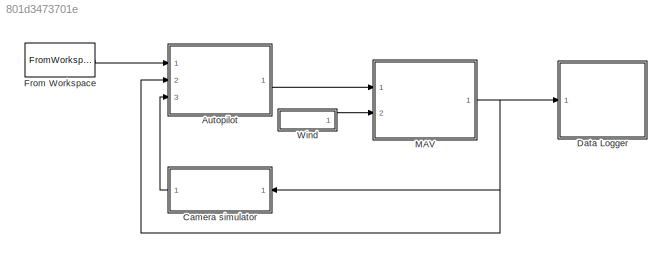
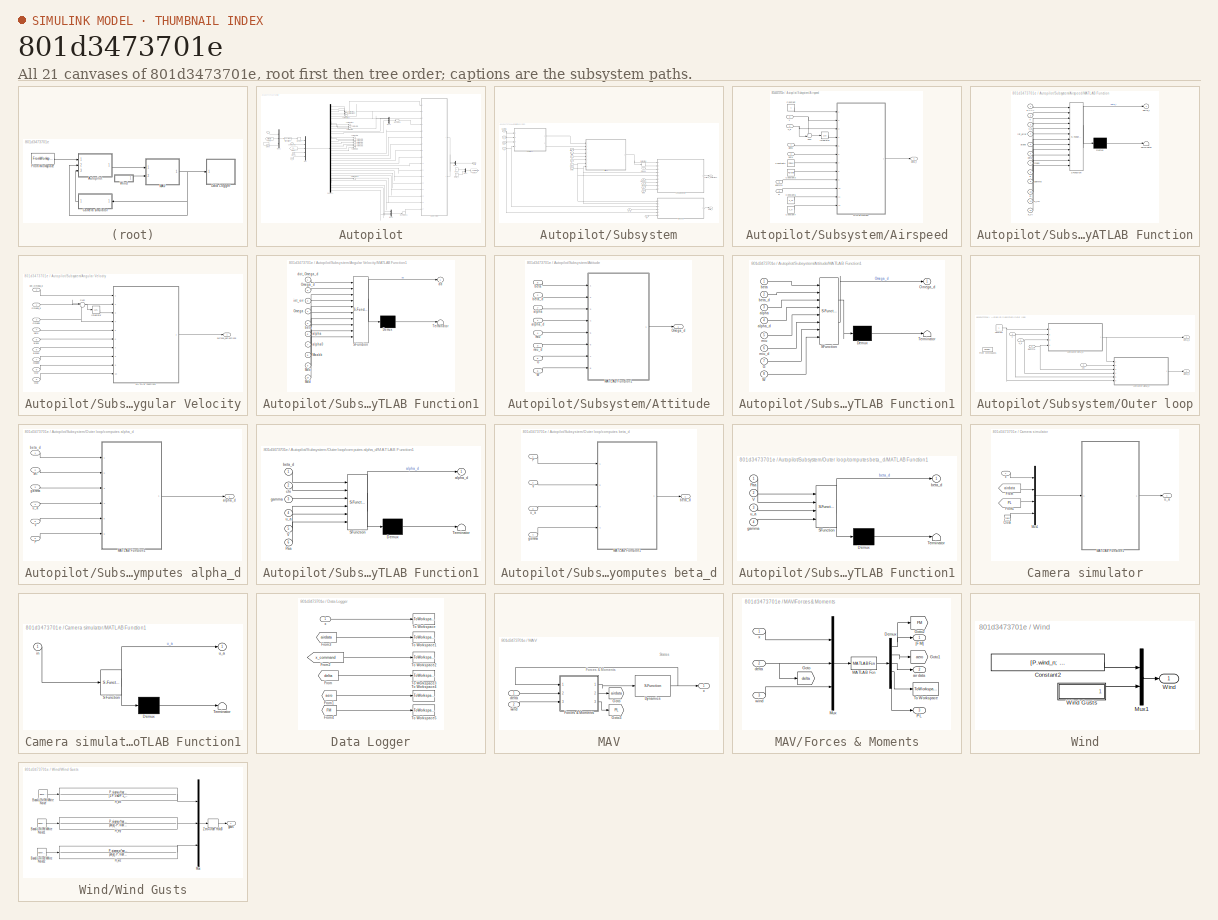
[diagram: thumbnail index - all 21 canvases of the model, root first then tree order]
MODEL slx_801d3473701e
KIND model
CONFIG AbsTol = 1e-3
CONFIG EnableMultiTasking = on
CONFIG FixedStep = P.Ts
CONFIG MaxStep = auto
CONFIG MinStep = auto
CONFIG RelTol = 1e-6
CONFIG SampleTimeConstraint = Unconstrained
CONFIG SolverName = ode4
CONFIG StartTime = 0.0
CONFIG StopTime = T
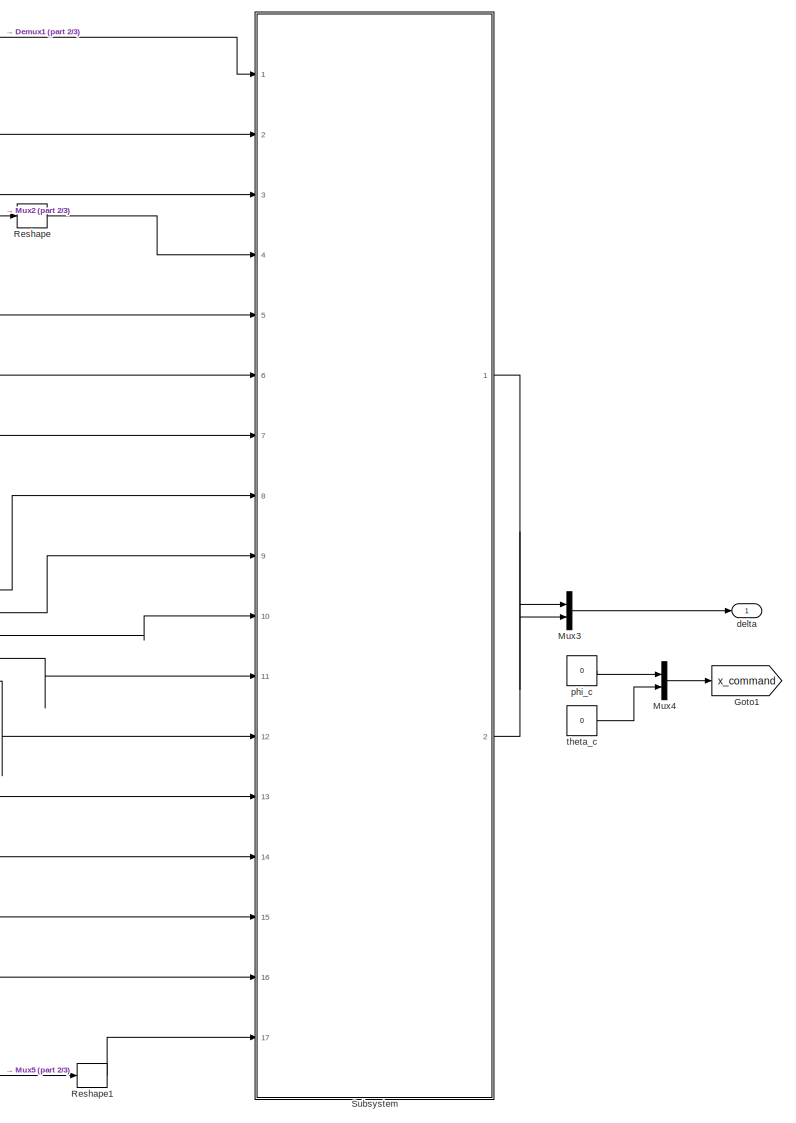
[diagram: Autopilot - part 1/3, right side, full height]
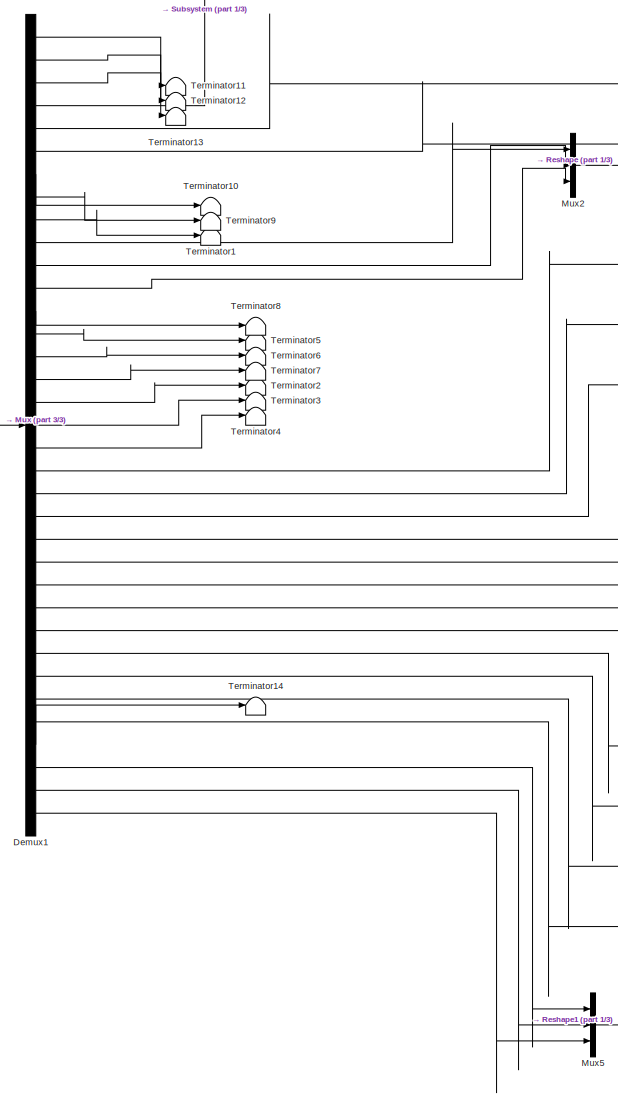
[diagram: Autopilot - part 2/3, center side, full height]
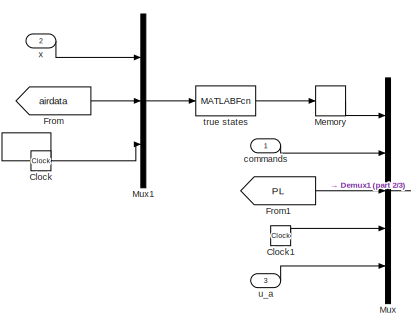
[diagram: Autopilot - part 3/3, middle left region]
BLOCK [SubSystem] Autopilot
  Ports = [3, 1]
  RequestExecContextInheritance = off
BLOCK [Clock] Autopilot/Clock
BLOCK [Clock] Autopilot/Clock1
BLOCK [Demux] Autopilot/Demux1
  Outputs = 19+1+11+1+3
  Ports = [1, 35]
BLOCK [From] Autopilot/From
  GotoTag = airdata
  TagVisibility = global
BLOCK [From] Autopilot/From1
  GotoTag = PL
  TagVisibility = global
BLOCK [Goto] Autopilot/Goto1
  GotoTag = x_command
  TagVisibility = global
BLOCK [Memory] Autopilot/Memory
BLOCK [Mux] Autopilot/Mux
  DisplayOption = bar
  Inputs = 5
  Ports = [5, 1]
BLOCK [Mux] Autopilot/Mux1
  DisplayOption = bar
  Inputs = 3
  Ports = [3, 1]
BLOCK [Mux] Autopilot/Mux2
  DisplayOption = bar
  Inputs = 3
  Ports = [3, 1]
BLOCK [Mux] Autopilot/Mux3
  DisplayOption = bar
  Inputs = 2
  Ports = [2, 1]
BLOCK [Mux] Autopilot/Mux4
  DisplayOption = bar
  Inputs = 2
  Ports = [2, 1]
BLOCK [Mux] Autopilot/Mux5
  DisplayOption = bar
  Inputs = 3
  Ports = [3, 1]
BLOCK [Reshape] Autopilot/Reshape
  OutputDimensionality = Customize
  OutputDimensions = [3,1]
  Ports = [1, 1]
BLOCK [Reshape] Autopilot/Reshape1
  OutputDimensionality = Customize
  OutputDimensions = [3,1]
  Ports = [1, 1]
BLOCK [SubSystem] Autopilot/Subsystem
  Ports = [17, 2]
  RequestExecContextInheritance = off
BLOCK [SubSystem] Autopilot/Subsystem/Airspeed
  Ports = [6, 1]
  RequestExecContextInheritance = off
BLOCK [Constant] Autopilot/Subsystem/Airspeed/Constant
BLOCK [Constant] Autopilot/Subsystem/Airspeed/Constant2
  Value = P.mass
BLOCK [Constant] Autopilot/Subsystem/Airspeed/Constant3
  Value = P.gravity
BLOCK [Constant] Autopilot/Subsystem/Airspeed/Constant6
  Value = k_VP
BLOCK [Constant] Autopilot/Subsystem/Airspeed/Constant7
  Value = k_VI
BLOCK [Inport] Autopilot/Subsystem/Airspeed/D
  Port = 6
BLOCK [Integrator] Autopilot/Subsystem/Airspeed/Integrator
  Ports = [1, 1]
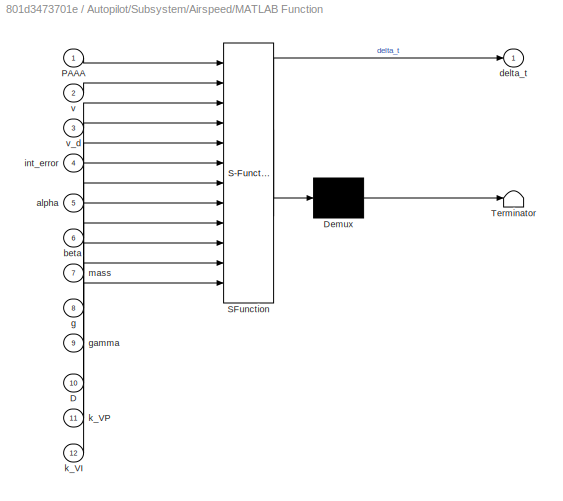
BLOCK [SubSystem] Autopilot/Subsystem/Airspeed/MATLAB Function
  ErrorFcn = Stateflow.Translate.translate
  PermitHierarchicalResolution = ExplicitOnly
  Ports = [12, 1]
  RequestExecContextInheritance = off
  SFBlockType = MATLAB Function
  TreatAsAtomicUnit = on
BLOCK [Demux] Autopilot/Subsystem/Airspeed/MATLAB Function/ Demux 
  Outputs = 1
  Ports = [1, 1]
BLOCK [S-Function] Autopilot/Subsystem/Airspeed/MATLAB Function/ SFunction 
  EnableBusSupport = on
  FunctionName = sf_sfun
  PortCounts = [12 2]
  Ports = [12, 2]
  SFcnIsStateOwnerBlock = off
  SFunctionDeploymentMode = off
  Tag = Stateflow S-Function 6
BLOCK [Terminator] Autopilot/Subsystem/Airspeed/MATLAB Function/ Terminator 
BLOCK [Inport] Autopilot/Subsystem/Airspeed/MATLAB Function/D
  Port = 10
BLOCK [Inport] Autopilot/Subsystem/Airspeed/MATLAB Function/PAAA
BLOCK [Inport] Autopilot/Subsystem/Airspeed/MATLAB Function/alpha
  Port = 5
BLOCK [Inport] Autopilot/Subsystem/Airspeed/MATLAB Function/beta
  Port = 6
BLOCK [Outport] Autopilot/Subsystem/Airspeed/MATLAB Function/delta_t
  VectorParamsAs1DForOutWhenUnconnected = off
BLOCK [Inport] Autopilot/Subsystem/Airspeed/MATLAB Function/g
  Port = 8
BLOCK [Inport] Autopilot/Subsystem/Airspeed/MATLAB Function/gamma
  Port = 9
BLOCK [Inport] Autopilot/Subsystem/Airspeed/MATLAB Function/int_error
  Port = 4
BLOCK [Inport] Autopilot/Subsystem/Airspeed/MATLAB Function/k_VI
  Port = 12
BLOCK [Inport] Autopilot/Subsystem/Airspeed/MATLAB Function/k_VP
  Port = 11
BLOCK [Inport] Autopilot/Subsystem/Airspeed/MATLAB Function/mass
  Port = 7
BLOCK [Inport] Autopilot/Subsystem/Airspeed/MATLAB Function/v
  Port = 2
BLOCK [Inport] Autopilot/Subsystem/Airspeed/MATLAB Function/v_d
  Port = 3
BLOCK [Sum] Autopilot/Subsystem/Airspeed/Sum
  Inputs = +-|
  Ports = [2, 1]
BLOCK [Inport] Autopilot/Subsystem/Airspeed/alpha
BLOCK [Inport] Autopilot/Subsystem/Airspeed/beta
  Port = 2
BLOCK [Outport] Autopilot/Subsystem/Airspeed/delta_t 
  VectorParamsAs1DForOutWhenUnconnected = off
BLOCK [Inport] Autopilot/Subsystem/Airspeed/gamma
  Port = 5
BLOCK [Inport] Autopilot/Subsystem/Airspeed/v 
  Port = 3
BLOCK [Inport] Autopilot/Subsystem/Airspeed/v_d
  Port = 4
BLOCK [SubSystem] Autopilot/Subsystem/Angular Velocity
  Ports = [9, 1]
  RequestExecContextInheritance = off
BLOCK [Integrator] Autopilot/Subsystem/Angular Velocity/Integrator
  Ports = [1, 1]
BLOCK [SubSystem] Autopilot/Subsystem/Angular Velocity/MATLAB Function1
  ErrorFcn = Stateflow.Translate.translate
  PermitHierarchicalResolution = ExplicitOnly
  Ports = [10, 1]
  RequestExecContextInheritance = off
  SFBlockType = MATLAB Function
  TreatAsAtomicUnit = on
BLOCK [Demux] Autopilot/Subsystem/Angular Velocity/MATLAB Function1/ Demux 
  Outputs = 1
  Ports = [1, 1]
BLOCK [S-Function] Autopilot/Subsystem/Angular Velocity/MATLAB Function1/ SFunction 
  EnableBusSupport = on
  FunctionName = sf_sfun
  PortCounts = [10 2]
  Ports = [10, 2]
  SFcnIsStateOwnerBlock = off
  SFunctionDeploymentMode = off
  Tag = Stateflow S-Function 7
BLOCK [Terminator] Autopilot/Subsystem/Angular Velocity/MATLAB Function1/ Terminator 
BLOCK [Inport] Autopilot/Subsystem/Angular Velocity/MATLAB Function1/Maabb
  Port = 8
BLOCK [Inport] Autopilot/Subsystem/Angular Velocity/MATLAB Function1/Mdd
  Port = 10
BLOCK [Inport] Autopilot/Subsystem/Angular Velocity/MATLAB Function1/Moo
  Port = 9
BLOCK [Inport] Autopilot/Subsystem/Angular Velocity/MATLAB Function1/Omega
  Port = 4
BLOCK [Inport] Autopilot/Subsystem/Angular Velocity/MATLAB Function1/Omega_d
  Port = 2
BLOCK [Inport] Autopilot/Subsystem/Angular Velocity/MATLAB Function1/alpha
  Port = 6
BLOCK [Inport] Autopilot/Subsystem/Angular Velocity/MATLAB Function1/alpha0
  Port = 7
BLOCK [Inport] Autopilot/Subsystem/Angular Velocity/MATLAB Function1/beta
  Port = 5
BLOCK [Outport] Autopilot/Subsystem/Angular Velocity/MATLAB Function1/dd
  VectorParamsAs1DForOutWhenUnconnected = off
BLOCK [Inport] Autopilot/Subsystem/Angular Velocity/MATLAB Function1/dot_Omega_d
BLOCK [Inport] Autopilot/Subsystem/Angular Velocity/MATLAB Function1/int_err
  Port = 3
BLOCK [Inport] Autopilot/Subsystem/Angular Velocity/Maabb
  Port = 7
BLOCK [Inport] Autopilot/Subsystem/Angular Velocity/Mdd
  Port = 9
BLOCK [Inport] Autopilot/Subsystem/Angular Velocity/Moo
  Port = 8
BLOCK [Inport] Autopilot/Subsystem/Angular Velocity/Omega
  Port = 3
BLOCK [Inport] Autopilot/Subsystem/Angular Velocity/Omega_d
BLOCK [Sum] Autopilot/Subsystem/Angular Velocity/Sum
  Inputs = |-+
  Ports = [2, 1]
BLOCK [Inport] Autopilot/Subsystem/Angular Velocity/alpha
  Port = 5
BLOCK [Inport] Autopilot/Subsystem/Angular Velocity/alpha0
  Port = 6
BLOCK [Inport] Autopilot/Subsystem/Angular Velocity/beta
  Port = 4
BLOCK [Inport] Autopilot/Subsystem/Angular Velocity/dot_Omega_d
  Port = 2
BLOCK [Outport] Autopilot/Subsystem/Angular Velocity/surface_deflections
  VectorParamsAs1DForOutWhenUnconnected = off
BLOCK [SubSystem] Autopilot/Subsystem/Attitude
  Ports = [8, 1]
  RequestExecContextInheritance = off
BLOCK [Inport] Autopilot/Subsystem/Attitude/G
  Port = 5
BLOCK [SubSystem] Autopilot/Subsystem/Attitude/MATLAB Function1
  ErrorFcn = Stateflow.Translate.translate
  PermitHierarchicalResolution = ExplicitOnly
  Ports = [8, 1]
  RequestExecContextInheritance = off
  SFBlockType = MATLAB Function
  TreatAsAtomicUnit = on
BLOCK [Demux] Autopilot/Subsystem/Attitude/MATLAB Function1/ Demux 
  Outputs = 1
  Ports = [1, 1]
BLOCK [S-Function] Autopilot/Subsystem/Attitude/MATLAB Function1/ SFunction 
  EnableBusSupport = on
  FunctionName = sf_sfun
  PortCounts = [8 2]
  Ports = [8, 2]
  SFcnIsStateOwnerBlock = off
  SFunctionDeploymentMode = off
  Tag = Stateflow S-Function 8
BLOCK [Terminator] Autopilot/Subsystem/Attitude/MATLAB Function1/ Terminator 
BLOCK [Inport] Autopilot/Subsystem/Attitude/MATLAB Function1/G
  Port = 7
BLOCK [Outport] Autopilot/Subsystem/Attitude/MATLAB Function1/Omega_d
  VectorParamsAs1DForOutWhenUnconnected = off
BLOCK [Inport] Autopilot/Subsystem/Attitude/MATLAB Function1/W
  Port = 8
BLOCK [Inport] Autopilot/Subsystem/Attitude/MATLAB Function1/alpha
  Port = 3
BLOCK [Inport] Autopilot/Subsystem/Attitude/MATLAB Function1/alpha_d
  Port = 4
BLOCK [Inport] Autopilot/Subsystem/Attitude/MATLAB Function1/beta
BLOCK [Inport] Autopilot/Subsystem/Attitude/MATLAB Function1/beta_d
  Port = 2
BLOCK [Inport] Autopilot/Subsystem/Attitude/MATLAB Function1/miu
  Port = 5
BLOCK [Inport] Autopilot/Subsystem/Attitude/MATLAB Function1/miu_d
  Port = 6
BLOCK [Outport] Autopilot/Subsystem/Attitude/Omega_d
  VectorParamsAs1DForOutWhenUnconnected = off
BLOCK [Inport] Autopilot/Subsystem/Attitude/W
  Port = 6
BLOCK [Inport] Autopilot/Subsystem/Attitude/alpha
  Port = 7
BLOCK [Inport] Autopilot/Subsystem/Attitude/alpha_d
BLOCK [Inport] Autopilot/Subsystem/Attitude/beta
  Port = 8
BLOCK [Inport] Autopilot/Subsystem/Attitude/beta_d
  Port = 2
BLOCK [Inport] Autopilot/Subsystem/Attitude/miu
  Port = 4
BLOCK [Inport] Autopilot/Subsystem/Attitude/miu_d
  Port = 3
BLOCK [Inport] Autopilot/Subsystem/D
  Port = 16
BLOCK [Derivative] Autopilot/Subsystem/Derivative
BLOCK [Inport] Autopilot/Subsystem/G
  Port = 9
BLOCK [Inport] Autopilot/Subsystem/Maabb
  Port = 13
BLOCK [Inport] Autopilot/Subsystem/Mdd
  Port = 15
BLOCK [Inport] Autopilot/Subsystem/Moo
  Port = 14
BLOCK [Inport] Autopilot/Subsystem/Omega 
  Port = 4
BLOCK [SubSystem] Autopilot/Subsystem/Outer loop
  Ports = [4, 2]
  RequestExecContextInheritance = off
BLOCK [Constant] Autopilot/Subsystem/Outer loop/Constant
BLOCK [FromWorkspace] Autopilot/Subsystem/Outer loop/From Workspace1
  Commented = on
  VariableName = P
BLOCK [Inport] Autopilot/Subsystem/Outer loop/V
  Port = 4
BLOCK [Outport] Autopilot/Subsystem/Outer loop/alpha_d
BLOCK [Outport] Autopilot/Subsystem/Outer loop/beta_d
  Port = 2
BLOCK [Inport] Autopilot/Subsystem/Outer loop/chi
  Port = 3
BLOCK [SubSystem] Autopilot/Subsystem/Outer loop/computes alpha_d
  Ports = [6, 1]
  RequestExecContextInheritance = off
BLOCK [SubSystem] Autopilot/Subsystem/Outer loop/computes alpha_d/MATLAB Function1
  ErrorFcn = Stateflow.Translate.translate
  PermitHierarchicalResolution = ExplicitOnly
  Ports = [6, 1]
  RequestExecContextInheritance = off
  SFBlockType = MATLAB Function
  TreatAsAtomicUnit = on
BLOCK [Demux] Autopilot/Subsystem/Outer loop/computes alpha_d/MATLAB Function1/ Demux 
  Outputs = 1
  Ports = [1, 1]
BLOCK [S-Function] Autopilot/Subsystem/Outer loop/computes alpha_d/MATLAB Function1/ SFunction 
  EnableBusSupport = on
  FunctionName = sf_sfun
  PortCounts = [6 2]
  Ports = [6, 2]
  SFcnIsStateOwnerBlock = off
  SFunctionDeploymentMode = off
  Tag = Stateflow S-Function 9
BLOCK [Terminator] Autopilot/Subsystem/Outer loop/computes alpha_d/MATLAB Function1/ Terminator 
BLOCK [Inport] Autopilot/Subsystem/Outer loop/computes alpha_d/MATLAB Function1/Paa
  Port = 6
BLOCK [Inport] Autopilot/Subsystem/Outer loop/computes alpha_d/MATLAB Function1/V
  Port = 5
BLOCK [Outport] Autopilot/Subsystem/Outer loop/computes alpha_d/MATLAB Function1/alpha_d
  VectorParamsAs1DForOutWhenUnconnected = off
BLOCK [Inport] Autopilot/Subsystem/Outer loop/computes alpha_d/MATLAB Function1/beta_d
BLOCK [Inport] Autopilot/Subsystem/Outer loop/computes alpha_d/MATLAB Function1/chi
  Port = 2
BLOCK [Inport] Autopilot/Subsystem/Outer loop/computes alpha_d/MATLAB Function1/gamma
  Port = 3
BLOCK [Inport] Autopilot/Subsystem/Outer loop/computes alpha_d/MATLAB Function1/u_a
  Port = 4
BLOCK [Inport] Autopilot/Subsystem/Outer loop/computes alpha_d/P
  Port = 6
BLOCK [Inport] Autopilot/Subsystem/Outer loop/computes alpha_d/V
  Port = 5
BLOCK [Outport] Autopilot/Subsystem/Outer loop/computes alpha_d/alpha_d
  VectorParamsAs1DForOutWhenUnconnected = off
BLOCK [Inport] Autopilot/Subsystem/Outer loop/computes alpha_d/beta_d
BLOCK [Inport] Autopilot/Subsystem/Outer loop/computes alpha_d/chi
  Port = 2
BLOCK [Inport] Autopilot/Subsystem/Outer loop/computes alpha_d/gamma
  Port = 3
BLOCK [Inport] Autopilot/Subsystem/Outer loop/computes alpha_d/u_a
  Port = 4
BLOCK [SubSystem] Autopilot/Subsystem/Outer loop/computes beta_d
  Ports = [4, 1]
  RequestExecContextInheritance = off
BLOCK [SubSystem] Autopilot/Subsystem/Outer loop/computes beta_d/MATLAB Function1
  ErrorFcn = Stateflow.Translate.translate
  PermitHierarchicalResolution = ExplicitOnly
  Ports = [4, 1]
  RequestExecContextInheritance = off
  SFBlockType = MATLAB Function
  TreatAsAtomicUnit = on
BLOCK [Demux] Autopilot/Subsystem/Outer loop/computes beta_d/MATLAB Function1/ Demux 
  Outputs = 1
  Ports = [1, 1]
BLOCK [S-Function] Autopilot/Subsystem/Outer loop/computes beta_d/MATLAB Function1/ SFunction 
  EnableBusSupport = on
  FunctionName = sf_sfun
  PortCounts = [4 2]
  Ports = [4, 2]
  SFcnIsStateOwnerBlock = off
  SFunctionDeploymentMode = off
  Tag = Stateflow S-Function 10
BLOCK [Terminator] Autopilot/Subsystem/Outer loop/computes beta_d/MATLAB Function1/ Terminator 
BLOCK [Inport] Autopilot/Subsystem/Outer loop/computes beta_d/MATLAB Function1/Paa
BLOCK [Inport] Autopilot/Subsystem/Outer loop/computes beta_d/MATLAB Function1/V
  Port = 2
BLOCK [Outport] Autopilot/Subsystem/Outer loop/computes beta_d/MATLAB Function1/beta_d
  VectorParamsAs1DForOutWhenUnconnected = off
BLOCK [Inport] Autopilot/Subsystem/Outer loop/computes beta_d/MATLAB Function1/gamma
  Port = 4
BLOCK [Inport] Autopilot/Subsystem/Outer loop/computes beta_d/MATLAB Function1/u_a
  Port = 3
BLOCK [Inport] Autopilot/Subsystem/Outer loop/computes beta_d/P
BLOCK [Inport] Autopilot/Subsystem/Outer loop/computes beta_d/V
  Port = 2
BLOCK [Outport] Autopilot/Subsystem/Outer loop/computes beta_d/beta_d
  VectorParamsAs1DForOutWhenUnconnected = off
BLOCK [Inport] Autopilot/Subsystem/Outer loop/computes beta_d/gamma
  Port = 4
BLOCK [Inport] Autopilot/Subsystem/Outer loop/computes beta_d/u_a
  Port = 3
BLOCK [Inport] Autopilot/Subsystem/Outer loop/gamma
BLOCK [Inport] Autopilot/Subsystem/Outer loop/u_a
  Port = 2
BLOCK [Inport] Autopilot/Subsystem/V
BLOCK [Inport] Autopilot/Subsystem/W
  Port = 10
BLOCK [Inport] Autopilot/Subsystem/alpha
  Port = 2
BLOCK [Inport] Autopilot/Subsystem/alpha0 1
  Port = 12
BLOCK [Inport] Autopilot/Subsystem/beta
  Port = 3
BLOCK [Inport] Autopilot/Subsystem/chi
  Port = 11
BLOCK [Outport] Autopilot/Subsystem/delta_t 
  Port = 2
  VectorParamsAs1DForOutWhenUnconnected = off
BLOCK [Inport] Autopilot/Subsystem/gamma
  Port = 8
BLOCK [Inport] Autopilot/Subsystem/miu
  Port = 6
BLOCK [Inport] Autopilot/Subsystem/miu_d
  Port = 7
BLOCK [Outport] Autopilot/Subsystem/surface_deflections
  VectorParamsAs1DForOutWhenUnconnected = off
BLOCK [Inport] Autopilot/Subsystem/u_a
  Port = 17
BLOCK [Inport] Autopilot/Subsystem/v_d
  Port = 5
BLOCK [Terminator] Autopilot/Terminator1
BLOCK [Terminator] Autopilot/Terminator10
  NameLocation = left
BLOCK [Terminator] Autopilot/Terminator11
BLOCK [Terminator] Autopilot/Terminator12
BLOCK [Terminator] Autopilot/Terminator13
BLOCK [Terminator] Autopilot/Terminator14
BLOCK [Terminator] Autopilot/Terminator2
BLOCK [Terminator] Autopilot/Terminator3
BLOCK [Terminator] Autopilot/Terminator4
BLOCK [Terminator] Autopilot/Terminator5
BLOCK [Terminator] Autopilot/Terminator6
BLOCK [Terminator] Autopilot/Terminator7
BLOCK [Terminator] Autopilot/Terminator8
BLOCK [Terminator] Autopilot/Terminator9
BLOCK [Inport] Autopilot/commands
BLOCK [Outport] Autopilot/delta
  VectorParamsAs1DForOutWhenUnconnected = off
BLOCK [Constant] Autopilot/phi_c
  Value = 0
BLOCK [Constant] Autopilot/theta_c
  Value = 0
BLOCK [MATLABFcn] Autopilot/true states
  MATLABFcn = true_states(u,P)
  OutputDimensions = 19
  Ports = [1, 1]
  SampleTime = P.Ts
BLOCK [Inport] Autopilot/u_a
  Port = 3
BLOCK [Inport] Autopilot/x
  Port = 2
BLOCK [SubSystem] Camera simulator
  NameLocation = top
  Ports = [1, 1]
  RequestExecContextInheritance = off
BLOCK [Clock] Camera simulator/Clock
BLOCK [From] Camera simulator/From
  GotoTag = airdata
  TagVisibility = global
BLOCK [From] Camera simulator/From1
  GotoTag = PL
  TagVisibility = global
BLOCK [SubSystem] Camera simulator/MATLAB Function1
  ErrorFcn = Stateflow.Translate.translate
  PermitHierarchicalResolution = ExplicitOnly
  Ports = [1, 1]
  RequestExecContextInheritance = off
  SFBlockType = MATLAB Function
  TreatAsAtomicUnit = on
BLOCK [Demux] Camera simulator/MATLAB Function1/ Demux 
  Outputs = 1
  Ports = [1, 1]
BLOCK [S-Function] Camera simulator/MATLAB Function1/ SFunction 
  EnableBusSupport = on
  FunctionName = sf_sfun
  PortCounts = [1 2]
  Ports = [1, 2]
  SFcnIsStateOwnerBlock = off
  SFunctionDeploymentMode = off
  Tag = Stateflow S-Function 1
BLOCK [Terminator] Camera simulator/MATLAB Function1/ Terminator 
BLOCK [Inport] Camera simulator/MATLAB Function1/in
BLOCK [Outport] Camera simulator/MATLAB Function1/u_a
  VectorParamsAs1DForOutWhenUnconnected = off
BLOCK [Mux] Camera simulator/Mux1
  DisplayOption = bar
  Ports = [4, 1]
BLOCK [Outport] Camera simulator/u_a
BLOCK [Inport] Camera simulator/x
BLOCK [SubSystem] Data Logger
  Ports = [1]
  RequestExecContextInheritance = off
BLOCK [From] Data Logger/From
  GotoTag = delta
  IconDisplay = Tag and signal name
  TagVisibility = global
BLOCK [From] Data Logger/From1
  GotoTag = aero
  TagVisibility = global
BLOCK [From] Data Logger/From2
  GotoTag = x_command
  IconDisplay = Tag and signal name
  TagVisibility = global
BLOCK [From] Data Logger/From3
  GotoTag = airdata
  IconDisplay = Tag and signal name
  TagVisibility = global
BLOCK [From] Data Logger/From4
  GotoTag = FM
  TagVisibility = global
BLOCK [ToWorkspace] Data Logger/To Workspace
  FixptAsFi = on
  MaxDataPoints = inf
  Ports = [1]
  SampleTime = -1
  SaveFormat = Structure With Time
  VariableName = state
BLOCK [ToWorkspace] Data Logger/To Workspace1
  FixptAsFi = on
  MaxDataPoints = inf
  Ports = [1]
  SampleTime = -1
  SaveFormat = Structure With Time
  VariableName = airdata
BLOCK [ToWorkspace] Data Logger/To Workspace2
  FixptAsFi = on
  MaxDataPoints = inf
  Ports = [1]
  SampleTime = -1
  SaveFormat = Structure With Time
  VariableName = x_command
BLOCK [ToWorkspace] Data Logger/To Workspace3
  FixptAsFi = on
  MaxDataPoints = inf
  Ports = [1]
  SampleTime = -1
  SaveFormat = Structure With Time
  VariableName = delta
BLOCK [ToWorkspace] Data Logger/To Workspace4
  FixptAsFi = on
  MaxDataPoints = inf
  Ports = [1]
  SampleTime = -1
  SaveFormat = Structure With Time
  VariableName = aero
BLOCK [ToWorkspace] Data Logger/To Workspace5
  FixptAsFi = on
  MaxDataPoints = inf
  Ports = [1]
  SampleTime = -1
  SaveFormat = Structure With Time
  VariableName = FM
BLOCK [Inport] Data Logger/x
BLOCK [FromWorkspace] From Workspace
  VariableName = reference
BLOCK [SubSystem] MAV
  Ports = [2, 1]
  RequestExecContextInheritance = off
BLOCK [S-Function] MAV/Dynamics
  EnableBusSupport = off
  FunctionName = mav_dynamics
  Parameters = P
  Ports = [1, 1]
  SFcnIsStateOwnerBlock = off
  SFunctionDeploymentMode = off
BLOCK [SubSystem] MAV/Forces & Moments
  Ports = [3, 3]
  RequestExecContextInheritance = off
BLOCK [Demux] MAV/Forces & Moments/Demux
  Outputs = [6;6;6;1;11]
  Ports = [1, 5]
BLOCK [Goto] MAV/Forces & Moments/Goto
  GotoTag = delta
  TagVisibility = global
BLOCK [Goto] MAV/Forces & Moments/Goto1
  GotoTag = aero
  TagVisibility = global
BLOCK [Goto] MAV/Forces & Moments/Goto2
  GotoTag = FM
  TagVisibility = global
BLOCK [MATLABFcn] MAV/Forces & Moments/MATLAB Fcn
  MATLABFcn = forces_moments(u(1:12),u(13:16),u(17:22),P)
  OutputDimensions = 30
  Ports = [1, 1]
BLOCK [Mux] MAV/Forces & Moments/Mux
  DisplayOption = bar
  Inputs = 3
  Ports = [3, 1]
BLOCK [Outport] MAV/Forces & Moments/PL
  Port = 3
  VectorParamsAs1DForOutWhenUnconnected = off
BLOCK [ToWorkspace] MAV/Forces & Moments/To Workspace
  FixptAsFi = on
  MaxDataPoints = inf
  Ports = [1]
  SampleTime = -1
  VariableName = u_r
BLOCK [Outport] MAV/Forces & Moments/[F M]
  VectorParamsAs1DForOutWhenUnconnected = off
BLOCK [Outport] MAV/Forces & Moments/air data
  Port = 2
  VectorParamsAs1DForOutWhenUnconnected = off
BLOCK [Inport] MAV/Forces & Moments/delta
  Port = 2
BLOCK [Inport] MAV/Forces & Moments/wind
  Port = 3
BLOCK [Inport] MAV/Forces & Moments/x
BLOCK [Goto] MAV/Goto
  GotoTag = airdata
  TagVisibility = global
BLOCK [Goto] MAV/Goto3
  GotoTag = PL
  TagVisibility = global
BLOCK [Inport] MAV/delta
BLOCK [Inport] MAV/wind
  Port = 2
BLOCK [Outport] MAV/x
  VectorParamsAs1DForOutWhenUnconnected = off
BLOCK [SubSystem] Wind
  Ports = [0, 1]
  RequestExecContextInheritance = off
BLOCK [Constant] Wind/Constant2
  Value = [P.wind_n; P.wind_e; P.wind_d]
BLOCK [Mux] Wind/Mux1
  DisplayOption = bar
  Inputs = 2
  Ports = [2, 1]
BLOCK [Outport] Wind/Wind
  VectorParamsAs1DForOutWhenUnconnected = off
BLOCK [SubSystem] Wind/Wind Gusts
  Ports = [0, 1]
  RequestExecContextInheritance = off
BLOCK [Reference] Wind/Wind Gusts/Band-Limited White Noise  REF=simulink/Sources/Band-Limited
White Noise
  Ports = [0, 1]
  SourceBlock = simulink/Sources/Band-Limited\nWhite Noise
  SourceProductBaseCode = SL
  SourceType = Band-Limited White Noise.
BLOCK [Reference] Wind/Wind Gusts/Band-Limited White Noise1  REF=simulink/Sources/Band-Limited
White Noise
  Ports = [0, 1]
  SourceBlock = simulink/Sources/Band-Limited\nWhite Noise
  SourceProductBaseCode = SL
  SourceType = Band-Limited White Noise.
BLOCK [Reference] Wind/Wind Gusts/Band-Limited White Noise2  REF=simulink/Sources/Band-Limited
White Noise
  Ports = [0, 1]
  SourceBlock = simulink/Sources/Band-Limited\nWhite Noise
  SourceProductBaseCode = SL
  SourceType = Band-Limited White Noise.
BLOCK [TransferFcn] Wind/Wind Gusts/H_wx
  Denominator = [1 P.Va0/P.L_u]
  Numerator = P.sigma_u*sqrt(2*P.Va0/P.L_u)
BLOCK [TransferFcn] Wind/Wind Gusts/H_wy
  Denominator = poly([-P.Va0/P.L_v, -P.Va0/P.L_v])
  Numerator = P.sigma_v*sqrt(3*P.Va0/P.L_v)*[0, 1, P.Va0/sqrt(3)/P.L_v]
BLOCK [TransferFcn] Wind/Wind Gusts/H_wz
  Denominator = poly([-P.Va0/P.L_w, -P.Va0/P.L_w])
  Numerator = P.sigma_w*sqrt(3*P.Va0/P.L_w)*[0, 1, P.Va0/sqrt(3)/P.L_w]
BLOCK [Mux] Wind/Wind Gusts/Mux
  DisplayOption = bar
  Inputs = 3
  Ports = [3, 1]
BLOCK [ZeroOrderHold] Wind/Wind Gusts/Zero-Order Hold3
  SampleTime = P.Ts
BLOCK [Outport] Wind/Wind Gusts/gusts
  VectorParamsAs1DForOutWhenUnconnected = off
ANNOTATION MAV: Forces & Moments
ANNOTATION MAV: States
LINE Autopilot/Clock1:1 -> Autopilot/Mux:4
LINE Autopilot/Clock:1 -> Autopilot/Mux1:3
LINE Autopilot/Demux1:1 -> Autopilot/Terminator11:1
LINE Autopilot/Demux1:10 -> Autopilot/Mux2:1
LINE Autopilot/Demux1:11 -> Autopilot/Mux2:2
LINE Autopilot/Demux1:12 -> Autopilot/Mux2:3
LINE Autopilot/Demux1:13 -> Autopilot/Terminator8:1
LINE Autopilot/Demux1:14 -> Autopilot/Terminator5:1
LINE Autopilot/Demux1:15 -> Autopilot/Terminator6:1
LINE Autopilot/Demux1:16 -> Autopilot/Terminator7:1
LINE Autopilot/Demux1:17 -> Autopilot/Terminator2:1
LINE Autopilot/Demux1:18 -> Autopilot/Terminator3:1
LINE Autopilot/Demux1:19 -> Autopilot/Terminator4:1
LINE Autopilot/Demux1:2 -> Autopilot/Terminator12:1
LINE Autopilot/Demux1:20 -> Autopilot/Subsystem:5
LINE Autopilot/Demux1:21 -> Autopilot/Subsystem:6
LINE Autopilot/Demux1:22 -> Autopilot/Subsystem:7
LINE Autopilot/Demux1:23 -> Autopilot/Subsystem:8
LINE Autopilot/Demux1:24 -> Autopilot/Subsystem:9
LINE Autopilot/Demux1:25 -> Autopilot/Subsystem:10
LINE Autopilot/Demux1:26 -> Autopilot/Subsystem:11
LINE Autopilot/Demux1:27 -> Autopilot/Subsystem:12
LINE Autopilot/Demux1:28 -> Autopilot/Subsystem:13
LINE Autopilot/Demux1:29 -> Autopilot/Subsystem:14
LINE Autopilot/Demux1:3 -> Autopilot/Terminator13:1
LINE Autopilot/Demux1:30 -> Autopilot/Subsystem:15
LINE Autopilot/Demux1:31 -> Autopilot/Subsystem:16
LINE Autopilot/Demux1:32 -> Autopilot/Terminator14:1
LINE Autopilot/Demux1:33 -> Autopilot/Mux5:1
LINE Autopilot/Demux1:34 -> Autopilot/Mux5:2
LINE Autopilot/Demux1:35 -> Autopilot/Mux5:3
LINE Autopilot/Demux1:4 -> Autopilot/Subsystem:1
LINE Autopilot/Demux1:5 -> Autopilot/Subsystem:2
LINE Autopilot/Demux1:6 -> Autopilot/Subsystem:3
LINE Autopilot/Demux1:7 -> Autopilot/Terminator10:1
LINE Autopilot/Demux1:8 -> Autopilot/Terminator9:1
LINE Autopilot/Demux1:9 -> Autopilot/Terminator1:1
LINE Autopilot/From1:1 -> Autopilot/Mux:3
LINE Autopilot/From:1 -> Autopilot/Mux1:2
LINE Autopilot/Memory:1 -> Autopilot/Mux:1
LINE Autopilot/Mux1:1 -> Autopilot/true states:1
LINE Autopilot/Mux2:1 -> Autopilot/Reshape:1
LINE Autopilot/Mux3:1 -> Autopilot/delta:1
LINE Autopilot/Mux4:1 -> Autopilot/Goto1:1
LINE Autopilot/Mux5:1 -> Autopilot/Reshape1:1
LINE Autopilot/Mux:1 -> Autopilot/Demux1:1
LINE Autopilot/Reshape1:1 -> Autopilot/Subsystem:17
LINE Autopilot/Reshape:1 -> Autopilot/Subsystem:4
LINE Autopilot/Subsystem/Airspeed/Constant2:1 -> Autopilot/Subsystem/Airspeed/MATLAB Function:7
LINE Autopilot/Subsystem/Airspeed/Constant3:1 -> Autopilot/Subsystem/Airspeed/MATLAB Function:8
LINE Autopilot/Subsystem/Airspeed/Constant6:1 -> Autopilot/Subsystem/Airspeed/MATLAB Function:11
LINE Autopilot/Subsystem/Airspeed/Constant7:1 -> Autopilot/Subsystem/Airspeed/MATLAB Function:12
LINE Autopilot/Subsystem/Airspeed/Constant:1 -> Autopilot/Subsystem/Airspeed/MATLAB Function:1
LINE Autopilot/Subsystem/Airspeed/D:1 -> Autopilot/Subsystem/Airspeed/MATLAB Function:10
LINE Autopilot/Subsystem/Airspeed/Integrator:1 -> Autopilot/Subsystem/Airspeed/MATLAB Function:4
LINE Autopilot/Subsystem/Airspeed/MATLAB Function:1 -> Autopilot/Subsystem/Airspeed/delta_t :1
LINE Autopilot/Subsystem/Airspeed/Sum:1 -> Autopilot/Subsystem/Airspeed/Integrator:1
LINE Autopilot/Subsystem/Airspeed/alpha:1 -> Autopilot/Subsystem/Airspeed/MATLAB Function:5
LINE Autopilot/Subsystem/Airspeed/beta:1 -> Autopilot/Subsystem/Airspeed/MATLAB Function:6
LINE Autopilot/Subsystem/Airspeed/gamma:1 -> Autopilot/Subsystem/Airspeed/MATLAB Function:9
NET Autopilot/Subsystem/Airspeed/v :1 -> Autopilot/Subsystem/Airspeed/MATLAB Function:2, Autopilot/Subsystem/Airspeed/Sum:1
NET Autopilot/Subsystem/Airspeed/v_d:1 -> Autopilot/Subsystem/Airspeed/MATLAB Function:3, Autopilot/Subsystem/Airspeed/Sum:2
LINE Autopilot/Subsystem/Airspeed:1 -> Autopilot/Subsystem/delta_t :1
LINE Autopilot/Subsystem/Angular Velocity/Integrator:1 -> Autopilot/Subsystem/Angular Velocity/MATLAB Function1:3
LINE Autopilot/Subsystem/Angular Velocity/MATLAB Function1:1 -> Autopilot/Subsystem/Angular Velocity/surface_deflections:1
LINE Autopilot/Subsystem/Angular Velocity/Maabb:1 -> Autopilot/Subsystem/Angular Velocity/MATLAB Function1:8
LINE Autopilot/Subsystem/Angular Velocity/Mdd:1 -> Autopilot/Subsystem/Angular Velocity/MATLAB Function1:10
LINE Autopilot/Subsystem/Angular Velocity/Moo:1 -> Autopilot/Subsystem/Angular Velocity/MATLAB Function1:9
NET Autopilot/Subsystem/Angular Velocity/Omega:1 -> Autopilot/Subsystem/Angular Velocity/MATLAB Function1:4, Autopilot/Subsystem/Angular Velocity/Sum:2
NET Autopilot/Subsystem/Angular Velocity/Omega_d:1 -> Autopilot/Subsystem/Angular Velocity/MATLAB Function1:2, Autopilot/Subsystem/Angular Velocity/Sum:1
LINE Autopilot/Subsystem/Angular Velocity/Sum:1 -> Autopilot/Subsystem/Angular Velocity/Integrator:1
LINE Autopilot/Subsystem/Angular Velocity/alpha0:1 -> Autopilot/Subsystem/Angular Velocity/MATLAB Function1:7
LINE Autopilot/Subsystem/Angular Velocity/alpha:1 -> Autopilot/Subsystem/Angular Velocity/MATLAB Function1:6
LINE Autopilot/Subsystem/Angular Velocity/beta:1 -> Autopilot/Subsystem/Angular Velocity/MATLAB Function1:5
LINE Autopilot/Subsystem/Angular Velocity/dot_Omega_d:1 -> Autopilot/Subsystem/Angular Velocity/MATLAB Function1:1
LINE Autopilot/Subsystem/Angular Velocity:1 -> Autopilot/Subsystem/surface_deflections:1
LINE Autopilot/Subsystem/Attitude/G:1 -> Autopilot/Subsystem/Attitude/MATLAB Function1:7
LINE Autopilot/Subsystem/Attitude/MATLAB Function1:1 -> Autopilot/Subsystem/Attitude/Omega_d:1
LINE Autopilot/Subsystem/Attitude/W:1 -> Autopilot/Subsystem/Attitude/MATLAB Function1:8
LINE Autopilot/Subsystem/Attitude/alpha:1 -> Autopilot/Subsystem/Attitude/MATLAB Function1:3
LINE Autopilot/Subsystem/Attitude/alpha_d:1 -> Autopilot/Subsystem/Attitude/MATLAB Function1:4
LINE Autopilot/Subsystem/Attitude/beta:1 -> Autopilot/Subsystem/Attitude/MATLAB Function1:1
LINE Autopilot/Subsystem/Attitude/beta_d:1 -> Autopilot/Subsystem/Attitude/MATLAB Function1:2
LINE Autopilot/Subsystem/Attitude/miu:1 -> Autopilot/Subsystem/Attitude/MATLAB Function1:5
LINE Autopilot/Subsystem/Attitude/miu_d:1 -> Autopilot/Subsystem/Attitude/MATLAB Function1:6
NET Autopilot/Subsystem/Attitude:1 -> Autopilot/Subsystem/Angular Velocity:1, Autopilot/Subsystem/Derivative:1
LINE Autopilot/Subsystem/D:1 -> Autopilot/Subsystem/Airspeed:6
LINE Autopilot/Subsystem/Derivative:1 -> Autopilot/Subsystem/Angular Velocity:2
LINE Autopilot/Subsystem/G:1 -> Autopilot/Subsystem/Attitude:5
LINE Autopilot/Subsystem/Maabb:1 -> Autopilot/Subsystem/Angular Velocity:7
LINE Autopilot/Subsystem/Mdd:1 -> Autopilot/Subsystem/Angular Velocity:9
LINE Autopilot/Subsystem/Moo:1 -> Autopilot/Subsystem/Angular Velocity:8
LINE Autopilot/Subsystem/Omega :1 -> Autopilot/Subsystem/Angular Velocity:3
NET Autopilot/Subsystem/Outer loop/Constant:1 -> Autopilot/Subsystem/Outer loop/computes alpha_d:6, Autopilot/Subsystem/Outer loop/computes beta_d:1
NET Autopilot/Subsystem/Outer loop/V:1 -> Autopilot/Subsystem/Outer loop/computes alpha_d:5, Autopilot/Subsystem/Outer loop/computes beta_d:2
LINE Autopilot/Subsystem/Outer loop/chi:1 -> Autopilot/Subsystem/Outer loop/computes alpha_d:2
LINE Autopilot/Subsystem/Outer loop/computes alpha_d/MATLAB Function1:1 -> Autopilot/Subsystem/Outer loop/computes alpha_d/alpha_d:1
LINE Autopilot/Subsystem/Outer loop/computes alpha_d/P:1 -> Autopilot/Subsystem/Outer loop/computes alpha_d/MATLAB Function1:6
LINE Autopilot/Subsystem/Outer loop/computes alpha_d/V:1 -> Autopilot/Subsystem/Outer loop/computes alpha_d/MATLAB Function1:5
LINE Autopilot/Subsystem/Outer loop/computes alpha_d/beta_d:1 -> Autopilot/Subsystem/Outer loop/computes alpha_d/MATLAB Function1:1
LINE Autopilot/Subsystem/Outer loop/computes alpha_d/chi:1 -> Autopilot/Subsystem/Outer loop/computes alpha_d/MATLAB Function1:2
LINE Autopilot/Subsystem/Outer loop/computes alpha_d/gamma:1 -> Autopilot/Subsystem/Outer loop/computes alpha_d/MATLAB Function1:3
LINE Autopilot/Subsystem/Outer loop/computes alpha_d/u_a:1 -> Autopilot/Subsystem/Outer loop/computes alpha_d/MATLAB Function1:4
LINE Autopilot/Subsystem/Outer loop/computes alpha_d:1 -> Autopilot/Subsystem/Outer loop/alpha_d:1
LINE Autopilot/Subsystem/Outer loop/computes beta_d/MATLAB Function1:1 -> Autopilot/Subsystem/Outer loop/computes beta_d/beta_d:1
LINE Autopilot/Subsystem/Outer loop/computes beta_d/P:1 -> Autopilot/Subsystem/Outer loop/computes beta_d/MATLAB Function1:1
LINE Autopilot/Subsystem/Outer loop/computes beta_d/V:1 -> Autopilot/Subsystem/Outer loop/computes beta_d/MATLAB Function1:2
LINE Autopilot/Subsystem/Outer loop/computes beta_d/gamma:1 -> Autopilot/Subsystem/Outer loop/computes beta_d/MATLAB Function1:4
LINE Autopilot/Subsystem/Outer loop/computes beta_d/u_a:1 -> Autopilot/Subsystem/Outer loop/computes beta_d/MATLAB Function1:3
NET Autopilot/Subsystem/Outer loop/computes beta_d:1 -> Autopilot/Subsystem/Outer loop/beta_d:1, Autopilot/Subsystem/Outer loop/computes alpha_d:1
NET Autopilot/Subsystem/Outer loop/gamma:1 -> Autopilot/Subsystem/Outer loop/computes alpha_d:3, Autopilot/Subsystem/Outer loop/computes beta_d:4
NET Autopilot/Subsystem/Outer loop/u_a:1 -> Autopilot/Subsystem/Outer loop/computes alpha_d:4, Autopilot/Subsystem/Outer loop/computes beta_d:3
LINE Autopilot/Subsystem/Outer loop:1 -> Autopilot/Subsystem/Attitude:1
LINE Autopilot/Subsystem/Outer loop:2 -> Autopilot/Subsystem/Attitude:2
NET Autopilot/Subsystem/V:1 -> Autopilot/Subsystem/Airspeed:3, Autopilot/Subsystem/Outer loop:4
LINE Autopilot/Subsystem/W:1 -> Autopilot/Subsystem/Attitude:6
LINE Autopilot/Subsystem/alpha0 1:1 -> Autopilot/Subsystem/Angular Velocity:6
NET Autopilot/Subsystem/alpha:1 -> Autopilot/Subsystem/Airspeed:1, Autopilot/Subsystem/Angular Velocity:5, Autopilot/Subsystem/Attitude:7
NET Autopilot/Subsystem/beta:1 -> Autopilot/Subsystem/Airspeed:2, Autopilot/Subsystem/Angular Velocity:4, Autopilot/Subsystem/Attitude:8
LINE Autopilot/Subsystem/chi:1 -> Autopilot/Subsystem/Outer loop:3
NET Autopilot/Subsystem/gamma:1 -> Autopilot/Subsystem/Airspeed:5, Autopilot/Subsystem/Outer loop:1
LINE Autopilot/Subsystem/miu:1 -> Autopilot/Subsystem/Attitude:4
LINE Autopilot/Subsystem/miu_d:1 -> Autopilot/Subsystem/Attitude:3
LINE Autopilot/Subsystem/u_a:1 -> Autopilot/Subsystem/Outer loop:2
LINE Autopilot/Subsystem/v_d:1 -> Autopilot/Subsystem/Airspeed:4
LINE Autopilot/Subsystem:1 -> Autopilot/Mux3:1
LINE Autopilot/Subsystem:2 -> Autopilot/Mux3:2
LINE Autopilot/commands:1 -> Autopilot/Mux:2
LINE Autopilot/phi_c:1 -> Autopilot/Mux4:1
LINE Autopilot/theta_c:1 -> Autopilot/Mux4:2
LINE Autopilot/true states:1 -> Autopilot/Memory:1
LINE Autopilot/u_a:1 -> Autopilot/Mux:5
LINE Autopilot/x:1 -> Autopilot/Mux1:1
LINE Autopilot:1 -> MAV:1
LINE Camera simulator/Clock:1 -> Camera simulator/Mux1:4
LINE Camera simulator/From1:1 -> Camera simulator/Mux1:3
LINE Camera simulator/From:1 -> Camera simulator/Mux1:2
LINE Camera simulator/MATLAB Function1:1 -> Camera simulator/u_a:1
LINE Camera simulator/Mux1:1 -> Camera simulator/MATLAB Function1:1
LINE Camera simulator/x:1 -> Camera simulator/Mux1:1
LINE Camera simulator:1 -> Autopilot:3
LINE Data Logger/From1:1 -> Data Logger/To Workspace4:1
LINE Data Logger/From2:1 -> Data Logger/To Workspace2:1
LINE Data Logger/From3:1 -> Data Logger/To Workspace1:1
LINE Data Logger/From4:1 -> Data Logger/To Workspace5:1
LINE Data Logger/From:1 -> Data Logger/To Workspace3:1
LINE Data Logger/x:1 -> Data Logger/To Workspace:1
LINE From Workspace:1 -> Autopilot:1
NET MAV/Dynamics:1 -> MAV/Forces & Moments:1, MAV/x:1
NET MAV/Forces & Moments/Demux:1 -> MAV/Forces & Moments/Goto2:1, MAV/Forces & Moments/[F M]:1
LINE MAV/Forces & Moments/Demux:2 -> MAV/Forces & Moments/Goto1:1
LINE MAV/Forces & Moments/Demux:3 -> MAV/Forces & Moments/air data:1
LINE MAV/Forces & Moments/Demux:4 -> MAV/Forces & Moments/To Workspace:1
LINE MAV/Forces & Moments/Demux:5 -> MAV/Forces & Moments/PL:1
LINE MAV/Forces & Moments/MATLAB Fcn:1 -> MAV/Forces & Moments/Demux:1
LINE MAV/Forces & Moments/Mux:1 -> MAV/Forces & Moments/MATLAB Fcn:1
NET MAV/Forces & Moments/delta:1 -> MAV/Forces & Moments/Goto:1, MAV/Forces & Moments/Mux:2
LINE MAV/Forces & Moments/wind:1 -> MAV/Forces & Moments/Mux:3
LINE MAV/Forces & Moments/x:1 -> MAV/Forces & Moments/Mux:1
LINE MAV/Forces & Moments:1 -> MAV/Dynamics:1
LINE MAV/Forces & Moments:2 -> MAV/Goto:1
LINE MAV/Forces & Moments:3 -> MAV/Goto3:1
LINE MAV/delta:1 -> MAV/Forces & Moments:2
LINE MAV/wind:1 -> MAV/Forces & Moments:3
NET MAV:1 -> Autopilot:2, Camera simulator:1, Data Logger:1
LINE Wind/Constant2:1 -> Wind/Mux1:1
LINE Wind/Mux1:1 -> Wind/Wind:1
LINE Wind/Wind Gusts/Band-Limited White Noise1:1 -> Wind/Wind Gusts/H_wy:1
LINE Wind/Wind Gusts/Band-Limited White Noise2:1 -> Wind/Wind Gusts/H_wz:1
LINE Wind/Wind Gusts/Band-Limited White Noise:1 -> Wind/Wind Gusts/H_wx:1
LINE Wind/Wind Gusts/H_wx:1 -> Wind/Wind Gusts/Mux:1
LINE Wind/Wind Gusts/H_wy:1 -> Wind/Wind Gusts/Mux:2
LINE Wind/Wind Gusts/H_wz:1 -> Wind/Wind Gusts/Mux:3
LINE Wind/Wind Gusts/Mux:1 -> Wind/Wind Gusts/Zero-Order Hold3:1
LINE Wind/Wind Gusts/Zero-Order Hold3:1 -> Wind/Wind Gusts/gusts:1
LINE Wind/Wind Gusts:1 -> Wind/Mux1:2
LINE Wind:1 -> MAV:2
note: NET lines group one-source signal fan-out (src -> all destinations, sorted); 1:1 wires keep LINE
CHART Autopilot/Subsystem/Outer loop/computes beta_d/MATLAB Function1 states=1 transitions=1
  STATE_LABEL 'eML_blk_kernel()'
  STATE_LABEL "SCRIPT:\nfunction beta_d = controller(Paa,V,u_a,gamma)\n    P.mass = 25;\n    P.rho = 1.2682;\n    P.gravity = 9.8000;\n    P.C_Y_beta = -0.9800;\n    P.S_wing = 0.5500;\n    \n    % params\n    q_bar = 0.5*P.rho*V^2;\n    \n    % control law\n\n    beta_d = ([0;0;1]'*u_a*cos(gamma)) / (q_bar*P.S_wing*P.C_Y_beta - P.mass*P.gravity*sin(gamma));\n\nend\n"
CHART Camera simulator/MATLAB Function1 states=1 transitions=1
  STATE_LABEL 'eML_blk_kernel()'
  STATE_LABEL 'SCRIPT:\n% function u_a = ua(in)\n%     % params\n%     % vw is wind\n%     \n%     V = in(13);  \n%     v = in(4,5,6); \n%     vw = [in(14,15),0];\n% \n%     k1 = 1;\n%     k3 = 5;\n%     k4 = 3.5;\n%     m = 25;\n%     q = [1, 0, 0]; % Centroid                   %é só isto?\n%     u = [0, 0 , 1]; % Direction of the lines    % duas vezes os mesmo u?\n%     u = transpose([1, 0, 0]);\n%     rho = transpose([0, 1, ...<+2912ch>'
CHART Autopilot/Subsystem/Airspeed/MATLAB Function states=1 transitions=1
  STATE_LABEL 'eML_blk_kernel()'
  STATE_LABEL 'SCRIPT:\nfunction delta_t = airspeedController(PAAA,v,v_d,int_error,alpha,beta,mass,g,gamma,D,k_VP,k_VI)\n% Equation 47 [1]\n    P.k_motor = 80;\n    P.rho = 1.2682;\n    P.S_prop = 0.2027;\n    P.C_prop = 1;\n    \n\n    F_T = [(D + mass*g*sin(gamma))/(cos(beta)*cos(alpha))] + ...\n        [(k_VP*(v-v_d) + k_VI*int_error)/(cos(beta)*cos(alpha))];\n\n    delta_t = (1/P.k_motor)*sqrt((2*F_T/(P.rho*P.S_prop*P.C...<+369ch>'
CHART Autopilot/Subsystem/Angular Velocity/MATLAB Function1 states=1 transitions=1
  STATE_LABEL 'eML_blk_kernel()'
  STATE_LABEL 'SCRIPT:\nfunction dd = controller(dot_Omega_d,Omega_d,int_err,Omega,beta,alpha,alpha0,Maabb,Moo,Mdd)\n% Equation 48 [1]\n\n    % gains\n    kp = 1;\n    ki = 1;\n    \n    % auxiliary calculations\n    Soo = skew(Omega);\n    \n    \n    % control law\n%     dd = Mdd^-1 *(Soo*eye(3)*Omega-...\n%         Maabb*[beta;alpha-alpha0]-...\n%         Moo*Omega-...\n%         kp*(Omega-Omega_d)-...\n%         ki*int_err+d...<+570ch>'
CHART Autopilot/Subsystem/Attitude/MATLAB Function1 states=1 transitions=1
  STATE_LABEL 'eML_blk_kernel()'
  STATE_LABEL 'SCRIPT:\nfunction Omega_d = controller(beta,beta_d,alpha,alpha_d,miu,miu_d,G,W)\n\n    % gains\n    Kp = 1;\n    % control law\n    Omega_d = G\\(-W-Kp*[beta-beta_d;alpha-alpha_d;miu-miu_d]);\nend\n'
CHART Autopilot/Subsystem/Outer loop/computes alpha_d/MATLAB Function1 states=1 transitions=1
  STATE_LABEL 'eML_blk_kernel()'
  STATE_LABEL 'SCRIPT:\nfunction alpha_d = controller(beta_d,chi,gamma,u_a,V,Paa)\n    \n    P.mass = 25;\n    P.rho = 1.2682;\n    P.C_D_alpha = 0.300;\n    P.C_L_alpha = 3.4500;\n    P.S_wing = 0.5500;\n    P.C_D_0 = 0.0300;\n    P.C_Y_beta = -0.980;\n    P.gravity = 9.8000;\n    P.C_L_0 = 0.2800;\n\n\n    % params\n    q_bar = 0.5*P.rho*V^2;\n\n    ad1 = q_bar * P.S_wing * P.C_D_alpha;\n    ad2 = q_bar * P.S_wing * (P.C_L_alph...<+494ch>'
CHART  states=0 transitions=0
CHART  states=0 transitions=0
CHART  states=0 transitions=0
CHART  states=0 transitions=0
CHART  states=0 transitions=0
CHART  states=0 transitions=0
